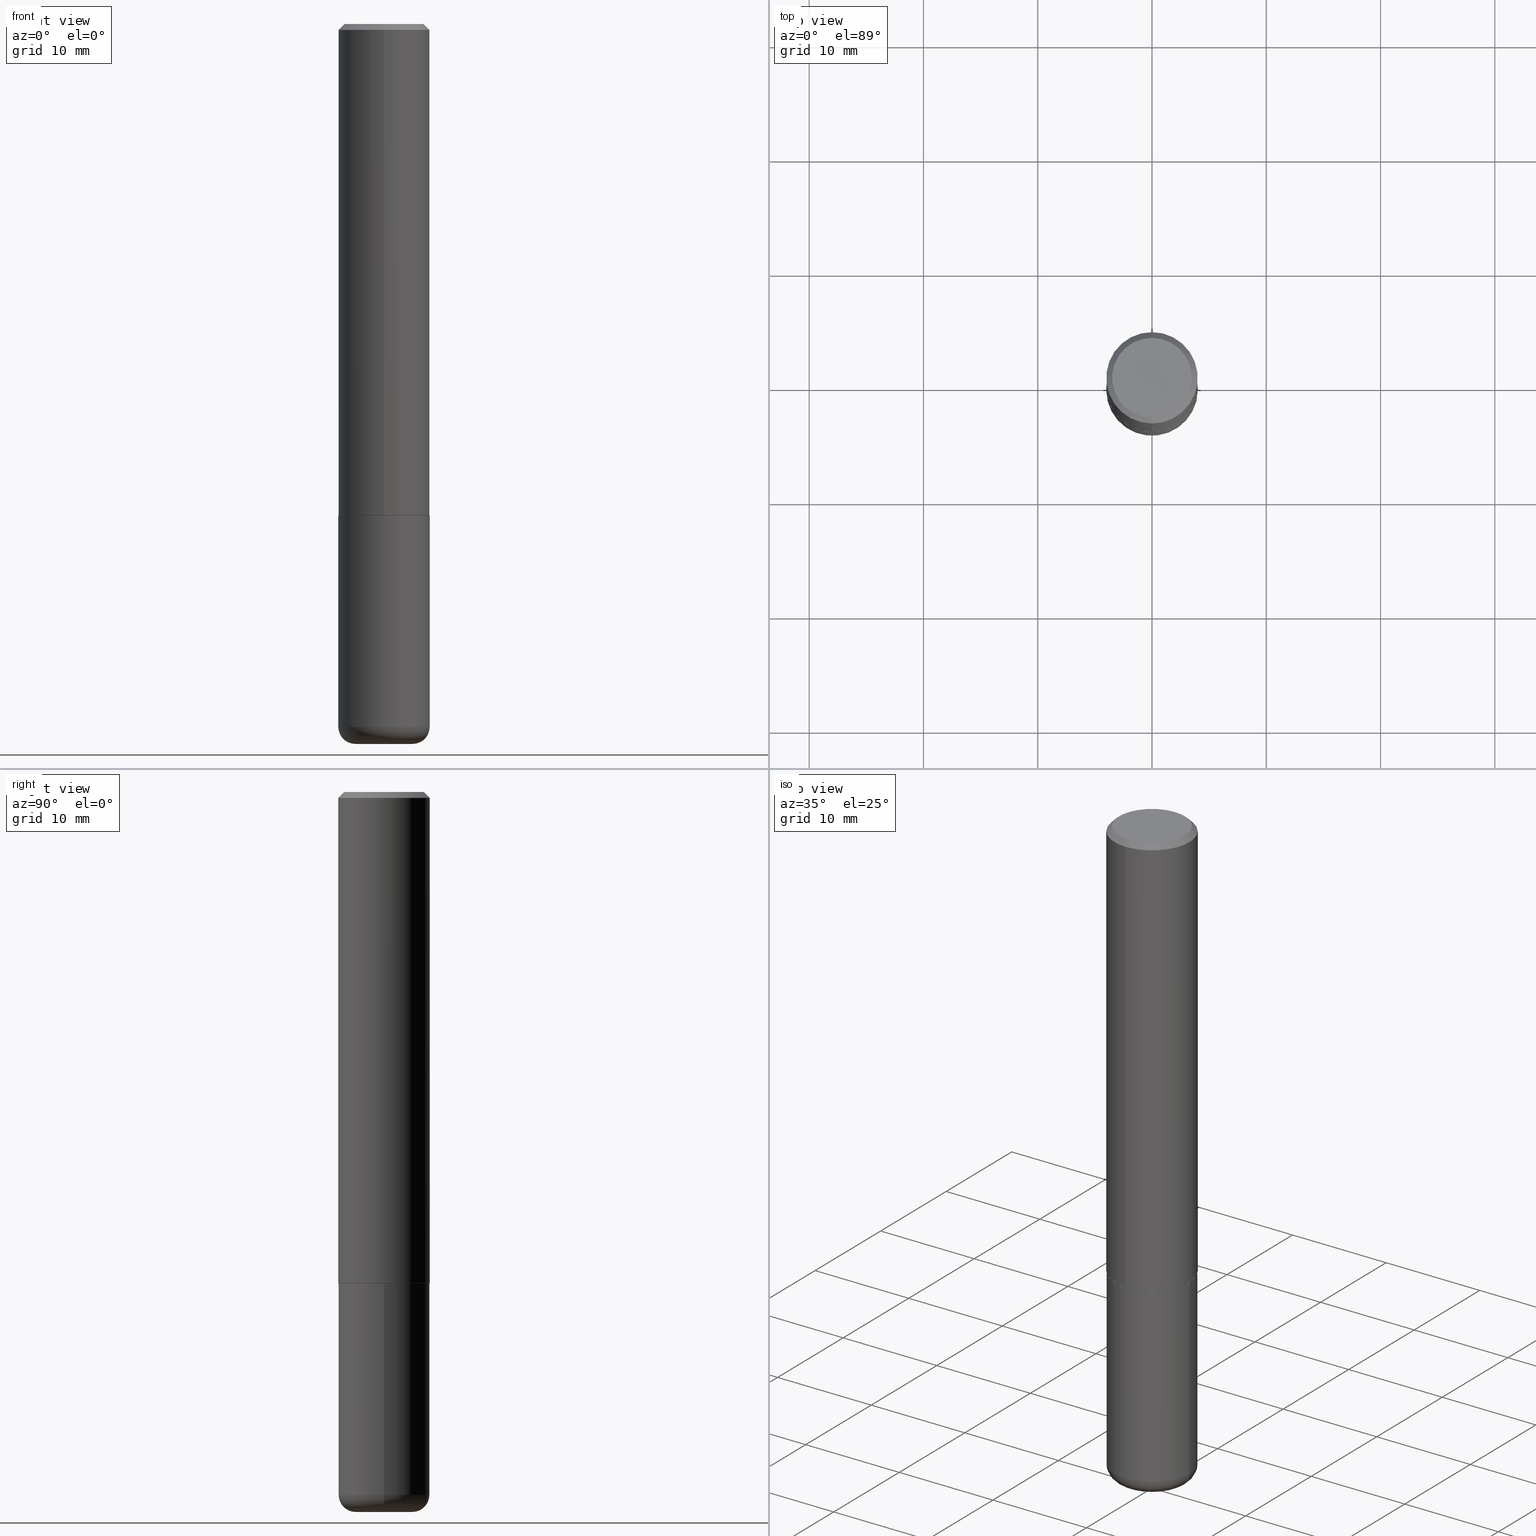
[diagram: canonical four-view strip — front | top / right | iso, engineering-drawing reading convention]
A machine part, canonical four-view strip (front | top / right | iso — engineering-drawing reading convention). The complete STEP part file that produces these views, byte-faithful:
ISO-10303-21;
HEADER;
FILE_DESCRIPTION (( 'STEP AP203' ),
    '1' );
FILE_NAME ('40019.STEP',
    '2024-03-03T20:43:40',
    ( '' ),
    ( '' ),
    'SwSTEP 2.0',
    'SolidWorks 2023',
    '' );
FILE_SCHEMA (( 'CONFIG_CONTROL_DESIGN' ));
ENDSEC;

DATA;
#1 = PERSON_AND_ORGANIZATION_ROLE ( 'creator' ) ;
#2 = DIRECTION ( 'NONE',  ( -2.446894125154584110E-29, 3.489440200954778984E-15, 1.000000000000000000 ) ) ;
#3 = AXIS2_PLACEMENT_3D ( 'NONE', #303, #57, #115 ) ;
#4 = VERTEX_POINT ( 'NONE', #344 ) ;
#5 = APPROVAL ( #359, 'UNSPECIFIED' ) ;
#6 = CYLINDRICAL_SURFACE ( 'NONE', #92, 0.1575000000000001399 ) ;
#7 = EDGE_CURVE ( 'NONE', #127, #4, #14, .T. ) ;
#8 = AXIS2_PLACEMENT_3D ( 'NONE', #252, #2, #186 ) ;
#9 = AXIS2_PLACEMENT_3D ( 'NONE', #332, #53, #176 ) ;
#10 = CARTESIAN_POINT ( 'NONE',  ( 6.065496279980994755E-29, -8.659921164732655335E-15, -2.480300000000000171 ) ) ;
#11 = DIRECTION ( 'NONE',  ( -2.445468806185136597E-29, 3.491481338843145583E-15, 1.000000000000000000 ) ) ;
#12 = ORIENTED_EDGE ( 'NONE', *, *, #70, .F. ) ;
#13 = DIRECTION ( 'NONE',  ( -2.445468806185136597E-29, 3.491481338843145583E-15, 1.000000000000000000 ) ) ;
#14 = CIRCLE ( 'NONE', #128, 0.1575000000000002232 ) ;
#15 = FACE_OUTER_BOUND ( 'NONE', #84, .T. ) ;
#16 = ORIENTED_EDGE ( 'NONE', *, *, #36, .F. ) ;
#17 = DIRECTION ( 'NONE',  ( 1.000000000000000000, -6.982962677686267499E-15, 0.000000000000000000 ) ) ;
#18 = MANIFOLD_SOLID_BREP ( 'Body-Move/Copy2[2]', #333 ) ;
#19 = CARTESIAN_POINT ( 'NONE',  ( -1.080528434649015779E-15, -0.1575000000000000844, -0.01999999999999948347 ) ) ;
#20 = ADVANCED_FACE ( 'NONE', ( #416 ), #184, .T. ) ;
#21 = FACE_OUTER_BOUND ( 'NONE', #316, .T. ) ;
#22 = VECTOR ( 'NONE', #391, 39.37007874015748143 ) ;
#23 = APPROVAL_PERSON_ORGANIZATION ( #317, #258, #343 ) ;
#24 = DIRECTION ( 'NONE',  ( -4.937700262164969294E-15, -0.7071067811866054154, 0.7071067811864896191 ) ) ;
#25 = VERTEX_POINT ( 'NONE', #342 ) ;
#26 = VERTEX_POINT ( 'NONE', #352 ) ;
#27 = DATE_AND_TIME ( #308, #210 ) ;
#28 = ORIENTED_EDGE ( 'NONE', *, *, #93, .F. ) ;
#29 = APPLICATION_CONTEXT ( 'configuration controlled 3d designs of mechanical parts and assemblies' ) ;
#30 = AXIS2_PLACEMENT_3D ( 'NONE', #288, #390, #386 ) ;
#31 = AXIS2_PLACEMENT_3D ( 'NONE', #367, #244, #206 ) ;
#32 = CC_DESIGN_APPROVAL ( #5, ( #409 ) ) ;
#33 = ORIENTED_EDGE ( 'NONE', *, *, #321, .T. ) ;
#34 = CALENDAR_DATE ( 2024, 3, 3 ) ;
#35 = ORIENTED_EDGE ( 'NONE', *, *, #242, .F. ) ;
#36 = EDGE_CURVE ( 'NONE', #238, #249, #413, .T. ) ;
#37 = ORIENTED_EDGE ( 'NONE', *, *, #42, .F. ) ;
#38 = CC_DESIGN_DATE_AND_TIME_ASSIGNMENT ( #285, #188, ( #274 ) ) ;
#39 = AXIS2_PLACEMENT_3D ( 'NONE', #366, #144, #111 ) ;
#40 = CARTESIAN_POINT ( 'NONE',  ( 5.920969073535453422E-29, -8.453574617607024936E-15, -2.421200000000000241 ) ) ;
#41 = COORDINATED_UNIVERSAL_TIME_OFFSET ( 5, 0, .BEHIND. ) ;
#42 = EDGE_CURVE ( 'NONE', #171, #149, #355, .T. ) ;
#43 = CARTESIAN_POINT ( 'NONE',  ( 0.000000000000000000, 0.000000000000000000, 0.000000000000000000 ) ) ;
#44 = DIRECTION ( 'NONE',  ( 1.000000000000000000, -6.982962677686269866E-15, 4.883557194083114022E-29 ) ) ;
#45 = ORIENTED_EDGE ( 'NONE', *, *, #336, .T. ) ;
#46 = VECTOR ( 'NONE', #369, 39.37007874015748143 ) ;
#47 = DIRECTION ( 'NONE',  ( -2.445468806185136597E-29, 3.491481338843145583E-15, 1.000000000000000000 ) ) ;
#48 = CARTESIAN_POINT ( 'NONE',  ( 0.000000000000000000, 0.000000000000000000, 0.000000000000000000 ) ) ;
#49 = EDGE_CURVE ( 'NONE', #169, #25, #275, .T. ) ;
#50 = ORIENTED_EDGE ( 'NONE', *, *, #42, .T. ) ;
#51 = CARTESIAN_POINT ( 'NONE',  ( 1.111999381464598010E-15, 0.1564999999999940883, -1.692900000000000960 ) ) ;
#52 = ORIENTED_EDGE ( 'NONE', *, *, #345, .T. ) ;
#53 = DIRECTION ( 'NONE',  ( -2.445468806185136597E-29, 3.491481338843145583E-15, 1.000000000000000000 ) ) ;
#54 = ADVANCED_FACE ( 'NONE', ( #100 ), #73, .T. ) ;
#55 = DIRECTION ( 'NONE',  ( -6.982962677686265922E-15, -1.000000000000000000, 3.491179544618866730E-15 ) ) ;
#56 = PLANE ( 'NONE',  #3 ) ;
#57 = DIRECTION ( 'NONE',  ( 2.438088387897960049E-29, -3.491481338843145188E-15, -1.000000000000000000 ) ) ;
#58 = ORIENTED_EDGE ( 'NONE', *, *, #272, .F. ) ;
#59 = AXIS2_PLACEMENT_3D ( 'NONE', #230, #106, #231 ) ;
#60 = APPROVAL_DATE_TIME ( #251, #384 ) ;
#61 = ORIENTED_EDGE ( 'NONE', *, *, #135, .T. ) ;
#62 = PERSON_AND_ORGANIZATION_ROLE ( 'design_supplier' ) ;
#63 = CARTESIAN_POINT ( 'NONE',  ( 4.139900170349041117E-29, -5.903783875995391742E-15, -1.691900000000000404 ) ) ;
#64 = UNCERTAINTY_MEASURE_WITH_UNIT (LENGTH_MEASURE( 1.000000000000000082E-05 ), #119, 'distance_accuracy_value', 'NONE');
#65 = DATE_AND_TIME ( #306, #401 ) ;
#66 = ORIENTED_EDGE ( 'NONE', *, *, #336, .F. ) ;
#67 = AXIS2_PLACEMENT_3D ( 'NONE', #259, #281, #123 ) ;
#68 = PRODUCT_DEFINITION_FORMATION_WITH_SPECIFIED_SOURCE ( 'ANY', '', #197, .NOT_KNOWN. ) ;
#69 = PERSON_AND_ORGANIZATION ( #235, #364 ) ;
#70 = EDGE_CURVE ( 'NONE', #249, #238, #348, .T. ) ;
#71 = ORIENTED_EDGE ( 'NONE', *, *, #36, .T. ) ;
#72 = APPROVAL_ROLE ( '' ) ;
#73 = CYLINDRICAL_SURFACE ( 'NONE', #173, 0.1575000000000000289 ) ;
#74 = CARTESIAN_POINT ( 'NONE',  ( 1.029986994958724774E-15, 0.1375000000000000944, -5.398378589523385849E-16 ) ) ;
#75 = VECTOR ( 'NONE', #300, 39.37007874015748143 ) ;
#76 = CYLINDRICAL_SURFACE ( 'NONE', #215, 0.1575000000000000289 ) ;
#77 = APPROVAL_ROLE ( '' ) ;
#78 = LINE ( 'NONE', #80, #22 ) ;
#79 = DATE_AND_TIME ( #195, #224 ) ;
#80 = CARTESIAN_POINT ( 'NONE',  ( 1.119104808822158392E-15, 0.1575000000000001399, -5.495868316503780705E-16 ) ) ;
#81 = CARTESIAN_POINT ( 'NONE',  ( 4.139934141990818918E-29, -5.910728758527562653E-15, -1.692900000000000293 ) ) ;
#82 = VERTEX_POINT ( 'NONE', #74 ) ;
#83 = DIRECTION ( 'NONE',  ( 2.446894125154584110E-29, -3.489440200954778984E-15, -1.000000000000000000 ) ) ;
#84 = EDGE_LOOP ( 'NONE', ( #234, #50, #66, #139 ) ) ;
#85 = DIRECTION ( 'NONE',  ( 6.982962677686264344E-15, 1.000000000000000000, -3.496114991891764787E-15 ) ) ;
#86 = ORIENTED_EDGE ( 'NONE', *, *, #267, .F. ) ;
#87 = LINE ( 'NONE', #276, #75 ) ;
#88 = CONICAL_SURFACE ( 'NONE', #247, 0.1565000000000000002, 0.7853981633975336552 ) ;
#89 = DIRECTION ( 'NONE',  ( -6.982962677686265922E-15, -1.000000000000000000, 3.491179544618866730E-15 ) ) ;
#90 = DIRECTION ( 'NONE',  ( 0.000000000000000000, 0.000000000000000000, 1.000000000000000000 ) ) ;
#91 = CARTESIAN_POINT ( 'NONE',  ( 4.893788250309175717E-31, -6.978880401909569159E-17, -0.02000000000000003511 ) ) ;
#92 = AXIS2_PLACEMENT_3D ( 'NONE', #48, #164, #260 ) ;
#93 = EDGE_CURVE ( 'NONE', #171, #351, #150, .T. ) ;
#94 = ORIENTED_EDGE ( 'NONE', *, *, #360, .T. ) ;
#95 = COORDINATED_UNIVERSAL_TIME_OFFSET ( 5, 0, .BEHIND. ) ;
#96 = ORIENTED_EDGE ( 'NONE', *, *, #354, .T. ) ;
#97 = CALENDAR_DATE ( 2024, 3, 3 ) ;
#98 = ORIENTED_EDGE ( 'NONE', *, *, #192, .T. ) ;
#99 = CIRCLE ( 'NONE', #187, 0.1375000000000000944 ) ;
#100 = FACE_OUTER_BOUND ( 'NONE', #114, .T. ) ;
#101 = CARTESIAN_POINT ( 'NONE',  ( -0.09840000000000000135, -7.647608460764791890E-15, -2.480300000000000171 ) ) ;
#102 = DIRECTION ( 'NONE',  ( -2.446894125154584110E-29, 3.489440200954778984E-15, 1.000000000000000000 ) ) ;
#103 = ADVANCED_FACE ( 'NONE', ( #105 ), #255, .T. ) ;
#104 = AXIS2_PLACEMENT_3D ( 'NONE', #10, #266, #357 ) ;
#105 = FACE_OUTER_BOUND ( 'NONE', #256, .T. ) ;
#106 = DIRECTION ( 'NONE',  ( -2.446894125154584110E-29, 3.489440200954778984E-15, 1.000000000000000000 ) ) ;
#107 = FACE_OUTER_BOUND ( 'NONE', #335, .T. ) ;
#108 = ORIENTED_EDGE ( 'NONE', *, *, #354, .F. ) ;
#109 = AXIS2_PLACEMENT_3D ( 'NONE', #339, #400, #412 ) ;
#110 = CC_DESIGN_PERSON_AND_ORGANIZATION_ASSIGNMENT ( #378, #185, ( #409 ) ) ;
#111 = DIRECTION ( 'NONE',  ( 1.000000000000000000, -6.982962677686269866E-15, 4.883557194083114022E-29 ) ) ;
#112 = ORIENTED_EDGE ( 'NONE', *, *, #219, .F. ) ;
#113 = CARTESIAN_POINT ( 'NONE',  ( 4.893788250309175717E-31, -6.978880401909569159E-17, -0.02000000000000003511 ) ) ;
#114 = EDGE_LOOP ( 'NONE', ( #201, #52, #189, #347 ) ) ;
#115 = DIRECTION ( 'NONE',  ( -1.000000000000000000, 6.982962677686265922E-15, -4.876176775795935793E-29 ) ) ;
#116 = CARTESIAN_POINT ( 'NONE',  ( -1.092833659057859065E-15, -0.1565000000000058844, -1.692899999999999849 ) ) ;
#117 = DIRECTION ( 'NONE',  ( -6.982962677686265922E-15, -1.000000000000000000, 3.491179544618866730E-15 ) ) ;
#118 = DESIGN_CONTEXT ( 'detailed design', #29, 'design' ) ;
#119 =( CONVERSION_BASED_UNIT ( 'INCH', #411 ) LENGTH_UNIT ( ) NAMED_UNIT ( #380 ) );
#120 = PERSON_AND_ORGANIZATION ( #235, #364 ) ;
#121 = ORIENTED_EDGE ( 'NONE', *, *, #7, .T. ) ;
#122 = AXIS2_PLACEMENT_3D ( 'NONE', #407, #304, #17 ) ;
#123 = DIRECTION ( 'NONE',  ( -6.982962677686265133E-15, -1.000000000000000000, 3.489440200954778195E-15 ) ) ;
#124 = EDGE_CURVE ( 'NONE', #25, #169, #145, .T. ) ;
#125 = DIRECTION ( 'NONE',  ( -1.000000000000000000, 7.105427357600997914E-15, 0.000000000000000000 ) ) ;
#126 = PERSON_AND_ORGANIZATION ( #235, #364 ) ;
#127 = VERTEX_POINT ( 'NONE', #320 ) ;
#128 = AXIS2_PLACEMENT_3D ( 'NONE', #63, #220, #254 ) ;
#129 = DIRECTION ( 'NONE',  ( 1.000000000000000000, -6.982962677686267499E-15, 4.876176775795935232E-29 ) ) ;
#130 = EDGE_CURVE ( 'NONE', #351, #171, #133, .T. ) ;
#131 = CARTESIAN_POINT ( 'NONE',  ( 9.601573681818622643E-16, 0.1375000000000000944, -5.098179432918105990E-16 ) ) ;
#132 = DIRECTION ( 'NONE',  ( 1.000000000000000000, -6.982962677686267499E-15, 4.876176775795935232E-29 ) ) ;
#133 = CIRCLE ( 'NONE', #241, 0.09840000000000000135 ) ;
#134 = CIRCLE ( 'NONE', #59, 0.1375000000000000944 ) ;
#135 = EDGE_CURVE ( 'NONE', #127, #238, #194, .T. ) ;
#136 = DIRECTION ( 'NONE',  ( -2.446894125154583830E-29, 3.489440200954778984E-15, 1.000000000000000000 ) ) ;
#137 = PRODUCT_DEFINITION_SHAPE ( 'NONE', 'NONE',  #274 ) ;
#138 = DIRECTION ( 'NONE',  ( 1.000000000000000000, -6.982962677686268288E-15, 0.000000000000000000 ) ) ;
#139 = ORIENTED_EDGE ( 'NONE', *, *, #278, .F. ) ;
#140 = AXIS2_PLACEMENT_3D ( 'NONE', #245, #177, #338 ) ;
#141 = CARTESIAN_POINT ( 'NONE',  ( 4.142347064474196087E-29, -5.907273316196346648E-15, -1.692900000000000293 ) ) ;
#142 = CARTESIAN_POINT ( 'NONE',  ( 0.09840000000000000135, -9.347044692216982806E-15, -2.480300000000000171 ) ) ;
#143 = ADVANCED_FACE ( 'NONE', ( #202 ), #228, .F. ) ;
#144 = DIRECTION ( 'NONE',  ( -2.445468806185136597E-29, 3.491481338843145583E-15, 1.000000000000000000 ) ) ;
#145 = CIRCLE ( 'NONE', #310, 0.1575000000000000011 ) ;
#146 = LINE ( 'NONE', #213, #46 ) ;
#147 = APPROVAL_DATE_TIME ( #65, #258 ) ;
#148 = PERSON_AND_ORGANIZATION_ROLE ( 'design_owner' ) ;
#149 = VERTEX_POINT ( 'NONE', #265 ) ;
#150 = CIRCLE ( 'NONE', #393, 0.09840000000000000135 ) ;
#151 = EDGE_CURVE ( 'NONE', #4, #249, #78, .T. ) ;
#152 = ORIENTED_EDGE ( 'NONE', *, *, #278, .T. ) ;
#153 = CIRCLE ( 'NONE', #9, 0.1575000000000000289 ) ;
#154 = CARTESIAN_POINT ( 'NONE',  ( 0.000000000000000000, 0.000000000000000000, 0.000000000000000000 ) ) ;
#155 = ORIENTED_EDGE ( 'NONE', *, *, #272, .T. ) ;
#156 = CC_DESIGN_DATE_AND_TIME_ASSIGNMENT ( #27, #312, ( #409 ) ) ;
#157 = MANIFOLD_SOLID_BREP ( 'Body-Move/Copy2[1]', #376 ) ;
#158 = COORDINATED_UNIVERSAL_TIME_OFFSET ( 5, 0, .BEHIND. ) ;
#159 = VERTEX_POINT ( 'NONE', #170 ) ;
#160 = DIRECTION ( 'NONE',  ( -2.445468806185136597E-29, 3.491481338843145583E-15, 1.000000000000000000 ) ) ;
#161 = LOCAL_TIME ( 15, 43, 40.00000000000000000, #385 ) ;
#162 = ADVANCED_FACE ( 'NONE', ( #200 ), #6, .T. ) ;
#163 = DIRECTION ( 'NONE',  ( -2.446894125154584110E-29, 3.489440200954778984E-15, 1.000000000000000000 ) ) ;
#164 = DIRECTION ( 'NONE',  ( -2.446894125154584110E-29, 3.489440200954778984E-15, 1.000000000000000000 ) ) ;
#165 = DIRECTION ( 'NONE',  ( -2.446894125154584390E-29, 3.489440200954778984E-15, 1.000000000000000000 ) ) ;
#166 = ADVANCED_FACE ( 'NONE', ( #394 ), #358, .F. ) ;
#167 = CC_DESIGN_APPROVAL ( #258, ( #68 ) ) ;
#168 = DIRECTION ( 'NONE',  ( 6.982962677686265922E-15, 1.000000000000000000, -3.489440200954778984E-15 ) ) ;
#169 = VERTEX_POINT ( 'NONE', #295 ) ;
#170 = CARTESIAN_POINT ( 'NONE',  ( 1.115552095143399501E-15, 0.1564999999999940883, -1.692900000000000960 ) ) ;
#171 = VERTEX_POINT ( 'NONE', #101 ) ;
#172 = DIRECTION ( 'NONE',  ( 5.024295867788490741E-15, 0.7071067811866103003, 0.7071067811864847341 ) ) ;
#173 = AXIS2_PLACEMENT_3D ( 'NONE', #191, #160, #129 ) ;
#174 = CONICAL_SURFACE ( 'NONE', #349, 0.1565000000000000002, 0.7853981633975336552 ) ;
#175 = ADVANCED_FACE ( 'NONE', ( #395 ), #293, .T. ) ;
#176 = DIRECTION ( 'NONE',  ( 1.000000000000000000, -6.982962677686267499E-15, 0.000000000000000000 ) ) ;
#177 = DIRECTION ( 'NONE',  ( -2.446894125154584110E-29, 3.489440200954778984E-15, 1.000000000000000000 ) ) ;
#178 = DIRECTION ( 'NONE',  ( 4.937700262164541731E-15, 0.7071067811865442421, -0.7071067811865507924 ) ) ;
#179 = DIRECTION ( 'NONE',  ( -6.982962677686265922E-15, -1.000000000000000000, 3.491179544618866730E-15 ) ) ;
#180 = CC_DESIGN_APPROVAL ( #384, ( #274 ) ) ;
#181 = CC_DESIGN_PERSON_AND_ORGANIZATION_ASSIGNMENT ( #120, #1, ( #68 ) ) ;
#182 = EDGE_LOOP ( 'NONE', ( #203, #277, #222, #108 ) ) ;
#183 = COORDINATED_UNIVERSAL_TIME_OFFSET ( 5, 0, .BEHIND. ) ;
#184 = CYLINDRICAL_SURFACE ( 'NONE', #67, 0.1575000000000001399 ) ;
#185 = PERSON_AND_ORGANIZATION_ROLE ( 'classification_officer' ) ;
#186 = DIRECTION ( 'NONE',  ( -6.982962677686264344E-15, -1.000000000000000000, 3.496114991891764787E-15 ) ) ;
#187 = AXIS2_PLACEMENT_3D ( 'NONE', #392, #102, #397 ) ;
#188 = DATE_TIME_ROLE ( 'creation_date' ) ;
#189 = ORIENTED_EDGE ( 'NONE', *, *, #313, .T. ) ;
#190 =( NAMED_UNIT ( * ) PLANE_ANGLE_UNIT ( ) SI_UNIT ( $, .RADIAN. ) );
#191 = CARTESIAN_POINT ( 'NONE',  ( 0.000000000000000000, 0.000000000000000000, 0.000000000000000000 ) ) ;
#192 = EDGE_CURVE ( 'NONE', #82, #318, #99, .T. ) ;
#193 = DIRECTION ( 'NONE',  ( -2.445468806185136597E-29, 3.491481338843145583E-15, 1.000000000000000000 ) ) ;
#194 = LINE ( 'NONE', #290, #221 ) ;
#195 = CALENDAR_DATE ( 2024, 3, 3 ) ;
#196 = ADVANCED_FACE ( 'NONE', ( #107 ), #76, .T. ) ;
#197 = PRODUCT ( '40019', '40019', '', ( #374 ) ) ;
#198 = CARTESIAN_POINT ( 'NONE',  ( 4.142347064474196087E-29, -5.907273316196346648E-15, -1.692900000000000293 ) ) ;
#199 = EDGE_LOOP ( 'NONE', ( #283, #28 ) ) ;
#200 = FACE_OUTER_BOUND ( 'NONE', #226, .T. ) ;
#201 = ORIENTED_EDGE ( 'NONE', *, *, #212, .F. ) ;
#202 = FACE_OUTER_BOUND ( 'NONE', #232, .T. ) ;
#203 = ORIENTED_EDGE ( 'NONE', *, *, #250, .T. ) ;
#204 = CARTESIAN_POINT ( 'NONE',  ( 4.142347064474196087E-29, -5.907273316196346648E-15, -1.692900000000000293 ) ) ;
#205 = ORIENTED_EDGE ( 'NONE', *, *, #124, .F. ) ;
#206 = DIRECTION ( 'NONE',  ( 1.000000000000000000, -6.982962677686266711E-15, 0.000000000000000000 ) ) ;
#207 = ORIENTED_EDGE ( 'NONE', *, *, #135, .F. ) ;
#208 = AXIS2_PLACEMENT_3D ( 'NONE', #314, #418, #125 ) ;
#209 =( GEOMETRIC_REPRESENTATION_CONTEXT ( 3 ) GLOBAL_UNCERTAINTY_ASSIGNED_CONTEXT ( ( #64 ) ) GLOBAL_UNIT_ASSIGNED_CONTEXT ( ( #119, #190, #246 ) ) REPRESENTATION_CONTEXT ( 'NONE', 'WORKASPACE' ) );
#210 = LOCAL_TIME ( 15, 43, 40.00000000000000000, #183 ) ;
#211 = CARTESIAN_POINT ( 'NONE',  ( 1.099816621735587480E-15, 0.1574999999999999456, -0.02000000000000058328 ) ) ;
#212 = EDGE_CURVE ( 'NONE', #149, #169, #292, .T. ) ;
#213 = CARTESIAN_POINT ( 'NONE',  ( -1.080528434649015779E-15, -0.1575000000000000844, -0.01999999999999948347 ) ) ;
#214 = LINE ( 'NONE', #239, #414 ) ;
#215 = AXIS2_PLACEMENT_3D ( 'NONE', #43, #353, #132 ) ;
#216 = APPROVAL_PERSON_ORGANIZATION ( #282, #5, #77 ) ;
#217 = EDGE_LOOP ( 'NONE', ( #58, #279, #33, #327 ) ) ;
#218 = EDGE_LOOP ( 'NONE', ( #112, #155, #71, #368 ) ) ;
#219 = EDGE_CURVE ( 'NONE', #318, #82, #134, .T. ) ;
#220 = DIRECTION ( 'NONE',  ( -2.446894125154584110E-29, 3.489440200954778984E-15, 1.000000000000000000 ) ) ;
#221 = VECTOR ( 'NONE', #165, 39.37007874015748143 ) ;
#222 = ORIENTED_EDGE ( 'NONE', *, *, #7, .F. ) ;
#223 = CIRCLE ( 'NONE', #140, 0.1575000000000002232 ) ;
#224 = LOCAL_TIME ( 15, 43, 40.00000000000000000, #41 ) ;
#225 = ADVANCED_FACE ( 'NONE', ( #15 ), #280, .T. ) ;
#226 = EDGE_LOOP ( 'NONE', ( #404, #325, #61, #12 ) ) ;
#227 = DIRECTION ( 'NONE',  ( 1.000000000000000000, -6.982962677686261977E-15, 0.000000000000000000 ) ) ;
#228 = PLANE ( 'NONE',  #387 ) ;
#229 = ADVANCED_FACE ( 'NONE', ( #237 ), #319, .T. ) ;
#230 = CARTESIAN_POINT ( 'NONE',  ( 1.469111105347644946E-45, -2.095054010702372216E-31, -6.003983132105615665E-17 ) ) ;
#231 = DIRECTION ( 'NONE',  ( -6.982962677686265922E-15, -1.000000000000000000, 3.489440200954779378E-15 ) ) ;
#232 = EDGE_LOOP ( 'NONE', ( #98, #286 ) ) ;
#233 = DIRECTION ( 'NONE',  ( -2.445468806185136877E-29, 3.491481338843145188E-15, 1.000000000000000000 ) ) ;
#234 = ORIENTED_EDGE ( 'NONE', *, *, #130, .T. ) ;
#235 = PERSON ( 'UNSPECIFIED', 'UNSPECIFIED', 'UNSPECIFIED', ('UNSPECIFIED'), ('UNSPECIFIED'), ('UNSPECIFIED') ) ;
#236 = VECTOR ( 'NONE', #172, 39.37007874015748143 ) ;
#237 = FACE_OUTER_BOUND ( 'NONE', #217, .T. ) ;
#238 = VERTEX_POINT ( 'NONE', #19 ) ;
#239 = CARTESIAN_POINT ( 'NONE',  ( 1.099816621735587480E-15, 0.1574999999999999456, -0.02000000000000058328 ) ) ;
#240 = FACE_OUTER_BOUND ( 'NONE', #399, .T. ) ;
#241 = AXIS2_PLACEMENT_3D ( 'NONE', #324, #11, #227 ) ;
#242 = EDGE_CURVE ( 'NONE', #4, #127, #223, .T. ) ;
#243 = AXIS2_PLACEMENT_3D ( 'NONE', #154, #90, #417 ) ;
#244 = DIRECTION ( 'NONE',  ( -6.982962677686266711E-15, -1.000000000000000000, 3.491481338843145583E-15 ) ) ;
#245 = CARTESIAN_POINT ( 'NONE',  ( 4.139900170349041117E-29, -5.903783875995391742E-15, -1.691900000000000404 ) ) ;
#246 =( NAMED_UNIT ( * ) SI_UNIT ( $, .STERADIAN. ) SOLID_ANGLE_UNIT ( ) );
#247 = AXIS2_PLACEMENT_3D ( 'NONE', #141, #337, #55 ) ;
#248 = SECURITY_CLASSIFICATION_LEVEL ( 'unclassified' ) ;
#249 = VERTEX_POINT ( 'NONE', #211 ) ;
#250 = EDGE_CURVE ( 'NONE', #309, #159, #289, .T. ) ;
#251 = DATE_AND_TIME ( #97, #161 ) ;
#252 = CARTESIAN_POINT ( 'NONE',  ( 4.893788250309175717E-31, -6.978880401909569159E-17, -0.02000000000000003511 ) ) ;
#253 = APPLICATION_PROTOCOL_DEFINITION ( 'international standard', 'config_control_design', 1994, #29 ) ;
#254 = DIRECTION ( 'NONE',  ( -6.982962677686265922E-15, -1.000000000000000000, 3.469013325287948560E-15 ) ) ;
#255 = TOROIDAL_SURFACE ( 'NONE', #262, 0.09840000000000000135, 0.05909999999999997200 ) ;
#256 = EDGE_LOOP ( 'NONE', ( #37, #379, #152, #331 ) ) ;
#257 = AXIS2_PLACEMENT_3D ( 'NONE', #113, #83, #85 ) ;
#258 = APPROVAL ( #315, 'UNSPECIFIED' ) ;
#259 = CARTESIAN_POINT ( 'NONE',  ( 0.000000000000000000, 0.000000000000000000, 0.000000000000000000 ) ) ;
#260 = DIRECTION ( 'NONE',  ( -6.982962677686265133E-15, -1.000000000000000000, 3.489440200954778195E-15 ) ) ;
#261 = CARTESIAN_POINT ( 'NONE',  ( -0.1575000000000000289, 1.119104808822157998E-15, -7.747322767151478386E-30 ) ) ;
#262 = AXIS2_PLACEMENT_3D ( 'NONE', #40, #13, #44 ) ;
#263 = CC_DESIGN_PERSON_AND_ORGANIZATION_ASSIGNMENT ( #382, #350, ( #274 ) ) ;
#264 = SHAPE_DEFINITION_REPRESENTATION ( #137, #305 ) ;
#265 = CARTESIAN_POINT ( 'NONE',  ( -0.1575000000000000011, -7.334469808784867333E-15, -2.421200000000000241 ) ) ;
#266 = DIRECTION ( 'NONE',  ( 2.438088387897960049E-29, -3.491481338843145188E-15, -1.000000000000000000 ) ) ;
#267 = EDGE_CURVE ( 'NONE', #159, #4, #330, .T. ) ;
#268 = DIRECTION ( 'NONE',  ( -2.446894125154584110E-29, 3.489440200954778984E-15, 1.000000000000000000 ) ) ;
#269 = ORIENTED_EDGE ( 'NONE', *, *, #360, .F. ) ;
#270 = CARTESIAN_POINT ( 'NONE',  ( -1.092833659057859065E-15, -0.1565000000000058844, -1.692899999999999849 ) ) ;
#271 = LINE ( 'NONE', #116, #311 ) ;
#272 = EDGE_CURVE ( 'NONE', #318, #238, #146, .T. ) ;
#273 = DIRECTION ( 'NONE',  ( -2.446894125154584110E-29, 3.489440200954778984E-15, 1.000000000000000000 ) ) ;
#274 = PRODUCT_DEFINITION ( 'UNKNOWN', '', #68, #118 ) ;
#275 = CIRCLE ( 'NONE', #30, 0.1575000000000000011 ) ;
#276 = CARTESIAN_POINT ( 'NONE',  ( 0.1575000000000000289, -1.099816621735587283E-15, 7.679978421878599434E-30 ) ) ;
#277 = ORIENTED_EDGE ( 'NONE', *, *, #267, .T. ) ;
#278 = EDGE_CURVE ( 'NONE', #351, #26, #377, .T. ) ;
#279 = ORIENTED_EDGE ( 'NONE', *, *, #192, .F. ) ;
#280 = TOROIDAL_SURFACE ( 'NONE', #39, 0.09840000000000000135, 0.05909999999999997200 ) ;
#281 = DIRECTION ( 'NONE',  ( -2.446894125154584110E-29, 3.489440200954778984E-15, 1.000000000000000000 ) ) ;
#282 = PERSON_AND_ORGANIZATION ( #235, #364 ) ;
#283 = ORIENTED_EDGE ( 'NONE', *, *, #130, .F. ) ;
#284 = ADVANCED_FACE ( 'NONE', ( #297 ), #88, .T. ) ;
#285 = DATE_AND_TIME ( #34, #388 ) ;
#286 = ORIENTED_EDGE ( 'NONE', *, *, #219, .T. ) ;
#287 = CC_DESIGN_PERSON_AND_ORGANIZATION_ASSIGNMENT ( #415, #148, ( #197 ) ) ;
#288 = CARTESIAN_POINT ( 'NONE',  ( 4.139934141990818918E-29, -5.910728758527562653E-15, -1.692900000000000293 ) ) ;
#289 = CIRCLE ( 'NONE', #334, 0.1565000000000000002 ) ;
#290 = CARTESIAN_POINT ( 'NONE',  ( -1.099816621735587677E-15, -0.1575000000000001399, 5.495868316503780705E-16 ) ) ;
#291 = ADVANCED_FACE ( 'NONE', ( #21 ), #56, .F. ) ;
#292 = LINE ( 'NONE', #261, #326 ) ;
#293 = PLANE ( 'NONE',  #104 ) ;
#294 = DIRECTION ( 'NONE',  ( -6.982962677686265922E-15, -1.000000000000000000, 3.489440200954778984E-15 ) ) ;
#295 = CARTESIAN_POINT ( 'NONE',  ( -0.1575000000000000011, -6.063046879245136191E-15, -1.692900000000000293 ) ) ;
#296 = ORIENTED_EDGE ( 'NONE', *, *, #124, .T. ) ;
#297 = FACE_OUTER_BOUND ( 'NONE', #182, .T. ) ;
#298 = CIRCLE ( 'NONE', #122, 0.1575000000000000289 ) ;
#299 = ORIENTED_EDGE ( 'NONE', *, *, #151, .T. ) ;
#300 = DIRECTION ( 'NONE',  ( -2.445468806185136877E-29, 3.491481338843145188E-15, 1.000000000000000000 ) ) ;
#301 = CARTESIAN_POINT ( 'NONE',  ( -1.011923454671301040E-15, -0.1375000000000000944, 4.197581963102262963E-16 ) ) ;
#302 = PRODUCT_RELATED_PRODUCT_CATEGORY ( 'detail', '', ( #197 ) ) ;
#303 = CARTESIAN_POINT ( 'NONE',  ( 4.139934141990818918E-29, -5.910728758527562653E-15, -1.692900000000000293 ) ) ;
#304 = DIRECTION ( 'NONE',  ( -2.445468806185136597E-29, 3.491481338843145583E-15, 1.000000000000000000 ) ) ;
#305 = ADVANCED_BREP_SHAPE_REPRESENTATION ( '40019', ( #157, #18, #243 ), #209 ) ;
#306 = CALENDAR_DATE ( 2024, 3, 3 ) ;
#307 = EDGE_LOOP ( 'NONE', ( #365, #269 ) ) ;
#308 = CALENDAR_DATE ( 2024, 3, 3 ) ;
#309 = VERTEX_POINT ( 'NONE', #270 ) ;
#310 = AXIS2_PLACEMENT_3D ( 'NONE', #81, #47, #138 ) ;
#311 = VECTOR ( 'NONE', #24, 39.37007874015748143 ) ;
#312 = DATE_TIME_ROLE ( 'classification_date' ) ;
#313 = EDGE_CURVE ( 'NONE', #26, #25, #87, .T. ) ;
#314 = CARTESIAN_POINT ( 'NONE',  ( -0.09840000000000000135, -7.754400565619087626E-15, -2.421200000000000241 ) ) ;
#315 = APPROVAL_STATUS ( 'not_yet_approved' ) ;
#316 = EDGE_LOOP ( 'NONE', ( #296, #375 ) ) ;
#317 = PERSON_AND_ORGANIZATION ( #235, #364 ) ;
#318 = VERTEX_POINT ( 'NONE', #301 ) ;
#319 = CONICAL_SURFACE ( 'NONE', #257, 0.1575000000000000289, 0.7853981633974471688 ) ;
#320 = CARTESIAN_POINT ( 'NONE',  ( -1.099816621735546854E-15, -0.1575000000000061351, -1.691899999999999737 ) ) ;
#321 = EDGE_CURVE ( 'NONE', #82, #249, #214, .T. ) ;
#322 = DIRECTION ( 'NONE',  ( 2.446894125154583830E-29, -3.489440200954778984E-15, -1.000000000000000000 ) ) ;
#323 = APPROVAL_DATE_TIME ( #79, #5 ) ;
#324 = CARTESIAN_POINT ( 'NONE',  ( 6.065496279980994755E-29, -8.659921164732655335E-15, -2.480300000000000171 ) ) ;
#325 = ORIENTED_EDGE ( 'NONE', *, *, #242, .T. ) ;
#326 = VECTOR ( 'NONE', #233, 39.37007874015748143 ) ;
#327 = ORIENTED_EDGE ( 'NONE', *, *, #70, .T. ) ;
#328 = DIRECTION ( 'NONE',  ( 1.000000000000000000, -6.982962677686261977E-15, 0.000000000000000000 ) ) ;
#329 = ORIENTED_EDGE ( 'NONE', *, *, #212, .T. ) ;
#330 = LINE ( 'NONE', #51, #236 ) ;
#331 = ORIENTED_EDGE ( 'NONE', *, *, #345, .F. ) ;
#332 = CARTESIAN_POINT ( 'NONE',  ( 5.920969073535453422E-29, -8.453574617607024936E-15, -2.421200000000000241 ) ) ;
#333 = CLOSED_SHELL ( 'NONE', ( #284, #20, #381, #229, #162, #372, #166, #143 ) ) ;
#334 = AXIS2_PLACEMENT_3D ( 'NONE', #204, #273, #179 ) ;
#335 = EDGE_LOOP ( 'NONE', ( #45, #329, #205, #405 ) ) ;
#336 = EDGE_CURVE ( 'NONE', #26, #149, #153, .T. ) ;
#337 = DIRECTION ( 'NONE',  ( -2.446894125154584110E-29, 3.489440200954778984E-15, 1.000000000000000000 ) ) ;
#338 = DIRECTION ( 'NONE',  ( -6.982962677686265922E-15, -1.000000000000000000, 3.469013325287948560E-15 ) ) ;
#339 = CARTESIAN_POINT ( 'NONE',  ( 4.893788250309175717E-31, -6.978880401909569159E-17, -0.02000000000000003511 ) ) ;
#340 = CIRCLE ( 'NONE', #356, 0.1565000000000000002 ) ;
#341 = APPROVAL_STATUS ( 'not_yet_approved' ) ;
#342 = CARTESIAN_POINT ( 'NONE',  ( 0.1575000000000000011, -7.010545380263150133E-15, -1.692900000000000293 ) ) ;
#343 = APPROVAL_ROLE ( '' ) ;
#344 = CARTESIAN_POINT ( 'NONE',  ( 1.119104808822179494E-15, 0.1574999999999943112, -1.691900000000000848 ) ) ;
#345 = EDGE_CURVE ( 'NONE', #149, #26, #298, .T. ) ;
#346 = APPLICATION_PROTOCOL_DEFINITION ( 'international standard', 'config_control_design', 1994, #398 ) ;
#347 = ORIENTED_EDGE ( 'NONE', *, *, #49, .F. ) ;
#348 = CIRCLE ( 'NONE', #408, 0.1575000000000000289 ) ;
#349 = AXIS2_PLACEMENT_3D ( 'NONE', #410, #268, #117 ) ;
#350 = PERSON_AND_ORGANIZATION_ROLE ( 'creator' ) ;
#351 = VERTEX_POINT ( 'NONE', #142 ) ;
#352 = CARTESIAN_POINT ( 'NONE',  ( 0.1575000000000000011, -9.553391239342613205E-15, -2.421200000000000241 ) ) ;
#353 = DIRECTION ( 'NONE',  ( -2.445468806185136597E-29, 3.491481338843145583E-15, 1.000000000000000000 ) ) ;
#354 = EDGE_CURVE ( 'NONE', #309, #127, #271, .T. ) ;
#355 = CIRCLE ( 'NONE', #208, 0.05909999999999995812 ) ;
#356 = AXIS2_PLACEMENT_3D ( 'NONE', #371, #406, #89 ) ;
#357 = DIRECTION ( 'NONE',  ( -1.000000000000000000, 6.982962677686265922E-15, -4.876176775795935793E-29 ) ) ;
#358 = PLANE ( 'NONE',  #363 ) ;
#359 = APPROVAL_STATUS ( 'not_yet_approved' ) ;
#360 = EDGE_CURVE ( 'NONE', #159, #309, #340, .T. ) ;
#361 = CARTESIAN_POINT ( 'NONE',  ( 6.065496279980994755E-29, -8.659921164732655335E-15, -2.480300000000000171 ) ) ;
#362 = DIRECTION ( 'NONE',  ( -6.982962677686264344E-15, -1.000000000000000000, 3.496114991891764787E-15 ) ) ;
#363 = AXIS2_PLACEMENT_3D ( 'NONE', #198, #136, #294 ) ;
#364 = ORGANIZATION ( 'UNSPECIFIED', 'UNSPECIFIED', '' ) ;
#365 = ORIENTED_EDGE ( 'NONE', *, *, #250, .F. ) ;
#366 = CARTESIAN_POINT ( 'NONE',  ( 5.920969073535453422E-29, -8.453574617607024936E-15, -2.421200000000000241 ) ) ;
#367 = CARTESIAN_POINT ( 'NONE',  ( 0.09840000000000000135, -9.140698145091353984E-15, -2.421200000000000241 ) ) ;
#368 = ORIENTED_EDGE ( 'NONE', *, *, #321, .F. ) ;
#369 = DIRECTION ( 'NONE',  ( -4.851104656540957964E-15, -0.7071067811865491270, -0.7071067811865459074 ) ) ;
#370 = CONICAL_SURFACE ( 'NONE', #109, 0.1575000000000000289, 0.7853981633974471688 ) ;
#371 = CARTESIAN_POINT ( 'NONE',  ( 4.142347064474196087E-29, -5.907273316196346648E-15, -1.692900000000000293 ) ) ;
#372 = ADVANCED_FACE ( 'NONE', ( #240 ), #174, .T. ) ;
#373 = FACE_OUTER_BOUND ( 'NONE', #218, .T. ) ;
#374 = MECHANICAL_CONTEXT ( 'NONE', #398, 'mechanical' ) ;
#375 = ORIENTED_EDGE ( 'NONE', *, *, #49, .T. ) ;
#376 = CLOSED_SHELL ( 'NONE', ( #196, #225, #291, #54, #103, #175 ) ) ;
#377 = CIRCLE ( 'NONE', #31, 0.05909999999999995812 ) ;
#378 = PERSON_AND_ORGANIZATION ( #235, #364 ) ;
#379 = ORIENTED_EDGE ( 'NONE', *, *, #93, .T. ) ;
#380 = DIMENSIONAL_EXPONENTS ( 1.000000000000000000, 0.000000000000000000, 0.000000000000000000, 0.000000000000000000, 0.000000000000000000, 0.000000000000000000, 0.000000000000000000 ) ;
#381 = ADVANCED_FACE ( 'NONE', ( #373 ), #370, .T. ) ;
#382 = PERSON_AND_ORGANIZATION ( #235, #364 ) ;
#383 = EDGE_LOOP ( 'NONE', ( #121, #299, #16, #207 ) ) ;
#384 = APPROVAL ( #341, 'UNSPECIFIED' ) ;
#385 = COORDINATED_UNIVERSAL_TIME_OFFSET ( 5, 0, .BEHIND. ) ;
#386 = DIRECTION ( 'NONE',  ( 1.000000000000000000, -6.982962677686268288E-15, 0.000000000000000000 ) ) ;
#387 = AXIS2_PLACEMENT_3D ( 'NONE', #131, #322, #168 ) ;
#388 = LOCAL_TIME ( 15, 43, 40.00000000000000000, #95 ) ;
#389 =( LENGTH_UNIT ( ) NAMED_UNIT ( * ) SI_UNIT ( $, .METRE. ) );
#390 = DIRECTION ( 'NONE',  ( -2.445468806185136597E-29, 3.491481338843145583E-15, 1.000000000000000000 ) ) ;
#391 = DIRECTION ( 'NONE',  ( -2.446894125154584390E-29, 3.489440200954778984E-15, 1.000000000000000000 ) ) ;
#392 = CARTESIAN_POINT ( 'NONE',  ( 1.469111105347644946E-45, -2.095054010702372216E-31, -6.003983132105615665E-17 ) ) ;
#393 = AXIS2_PLACEMENT_3D ( 'NONE', #361, #193, #328 ) ;
#394 = FACE_OUTER_BOUND ( 'NONE', #307, .T. ) ;
#395 = FACE_OUTER_BOUND ( 'NONE', #199, .T. ) ;
#396 = CC_DESIGN_PERSON_AND_ORGANIZATION_ASSIGNMENT ( #126, #62, ( #68 ) ) ;
#397 = DIRECTION ( 'NONE',  ( -6.982962677686265922E-15, -1.000000000000000000, 3.489440200954779378E-15 ) ) ;
#398 = APPLICATION_CONTEXT ( 'configuration controlled 3d designs of mechanical parts and assemblies' ) ;
#399 = EDGE_LOOP ( 'NONE', ( #86, #94, #96, #35 ) ) ;
#400 = DIRECTION ( 'NONE',  ( 2.446894125154584110E-29, -3.489440200954778984E-15, -1.000000000000000000 ) ) ;
#401 = LOCAL_TIME ( 15, 43, 40.00000000000000000, #158 ) ;
#402 = APPROVAL_PERSON_ORGANIZATION ( #69, #384, #72 ) ;
#403 = CC_DESIGN_SECURITY_CLASSIFICATION ( #409, ( #68 ) ) ;
#404 = ORIENTED_EDGE ( 'NONE', *, *, #151, .F. ) ;
#405 = ORIENTED_EDGE ( 'NONE', *, *, #313, .F. ) ;
#406 = DIRECTION ( 'NONE',  ( -2.446894125154584110E-29, 3.489440200954778984E-15, 1.000000000000000000 ) ) ;
#407 = CARTESIAN_POINT ( 'NONE',  ( 5.920969073535453422E-29, -8.453574617607024936E-15, -2.421200000000000241 ) ) ;
#408 = AXIS2_PLACEMENT_3D ( 'NONE', #91, #163, #362 ) ;
#409 = SECURITY_CLASSIFICATION ( '', '', #248 ) ;
#410 = CARTESIAN_POINT ( 'NONE',  ( 4.142347064474196087E-29, -5.907273316196346648E-15, -1.692900000000000293 ) ) ;
#411 = LENGTH_MEASURE_WITH_UNIT ( LENGTH_MEASURE( 0.02539999999999999897 ), #389 );
#412 = DIRECTION ( 'NONE',  ( 6.982962677686264344E-15, 1.000000000000000000, -3.496114991891764787E-15 ) ) ;
#413 = CIRCLE ( 'NONE', #8, 0.1575000000000000289 ) ;
#414 = VECTOR ( 'NONE', #178, 39.37007874015748143 ) ;
#415 = PERSON_AND_ORGANIZATION ( #235, #364 ) ;
#416 = FACE_OUTER_BOUND ( 'NONE', #383, .T. ) ;
#417 = DIRECTION ( 'NONE',  ( 1.000000000000000000, 0.000000000000000000, 0.000000000000000000 ) ) ;
#418 = DIRECTION ( 'NONE',  ( 7.105427357601001859E-15, 1.000000000000000000, -3.491481338843145583E-15 ) ) ;
ENDSEC;
END-ISO-10303-21;
